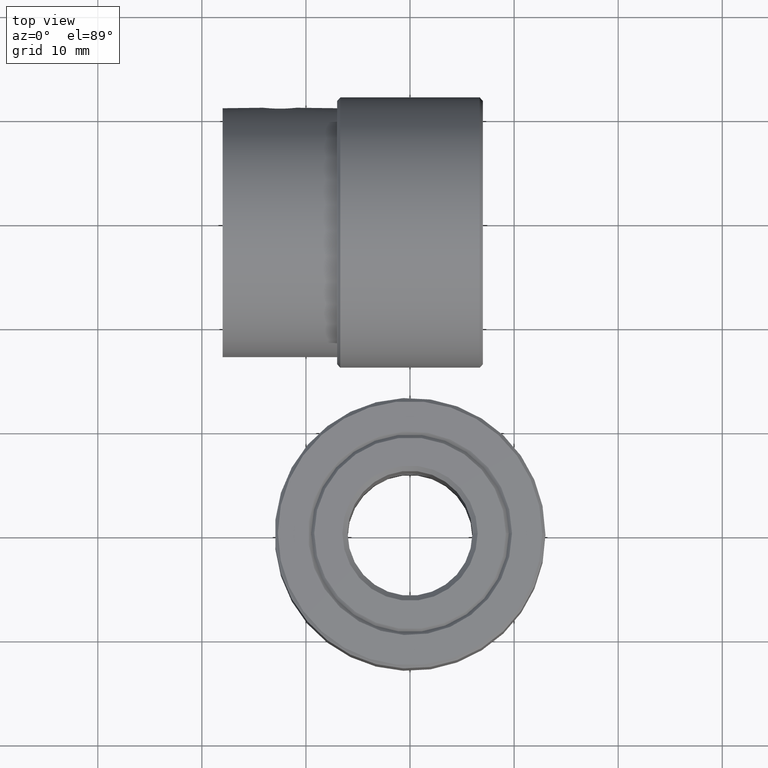
[diagram: clean part render]
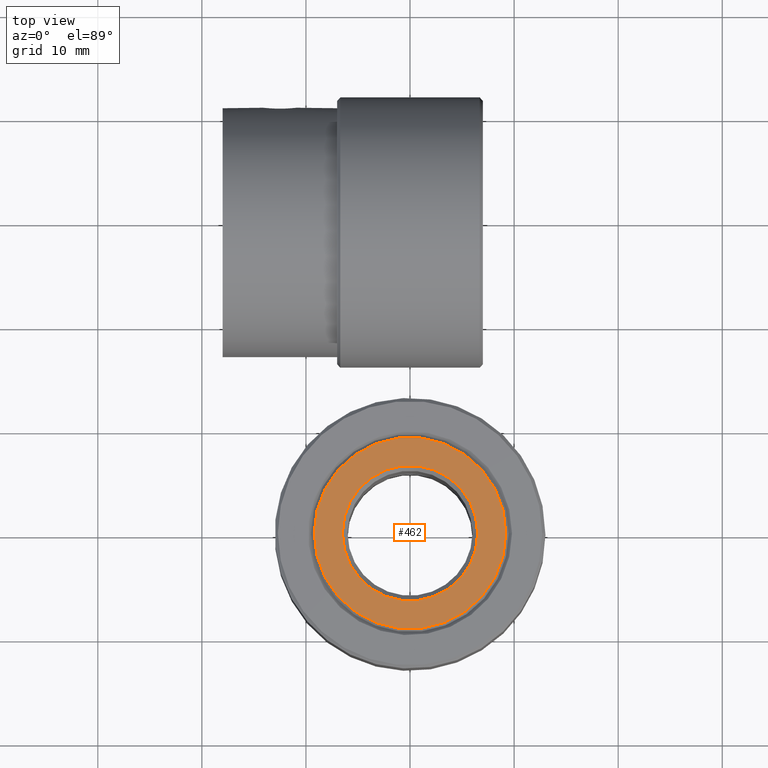
[diagram: same view with one face highlighted and labeled with its STEP entity id]
A machine part, top view. The second image highlights one B-rep face of the part: STEP entity #462.
In plain terms, the highlighted planar face has unit normal (0, 0, 1).
Its self-contained STEP definition (entity closure, byte-faithful):
#462 = ADVANCED_FACE( '', ( #569, #570 ), #571, .T. );
#569 = FACE_OUTER_BOUND( '', #795, .T. );
#570 = FACE_BOUND( '', #796, .T. );
#571 = PLANE( '', #797 );
#795 = EDGE_LOOP( '', ( #1035 ) );
#796 = EDGE_LOOP( '', ( #1036 ) );
#797 = AXIS2_PLACEMENT_3D( '', #1037, #1038, #1039 );
#1035 = ORIENTED_EDGE( '', *, *, #1503, .T. );
#1036 = ORIENTED_EDGE( '', *, *, #1510, .T. );
#1037 = CARTESIAN_POINT( '', ( 0.000000000000000, 0.000000000000000, 0.000000000000000 ) );
#1038 = DIRECTION( '', ( 0.000000000000000, 0.000000000000000, 1.00000000000000 ) );
#1039 = DIRECTION( '', ( 1.00000000000000, 0.000000000000000, 0.000000000000000 ) );
#1503 = EDGE_CURVE( '', #1638, #1638, #1639, .T. );
#1510 = EDGE_CURVE( '', #1652, #1652, #1653, .F. );
#1638 = VERTEX_POINT( '', #1972 );
#1639 = CIRCLE( '', #1973, 9.20000000000000 );
#1652 = VERTEX_POINT( '', #2092 );
#1653 = CIRCLE( '', #2093, 6.50000000000000 );
#1972 = CARTESIAN_POINT( '', ( 9.20000000000000, 0.000000000000000, 0.000000000000000 ) );
#1973 = AXIS2_PLACEMENT_3D( '', #2685, #2686, #2687 );
#2092 = CARTESIAN_POINT( '', ( 6.50000000000000, 0.000000000000000, 0.000000000000000 ) );
#2093 = AXIS2_PLACEMENT_3D( '', #2700, #2701, #2702 );
#2685 = CARTESIAN_POINT( '', ( 0.000000000000000, 0.000000000000000, 0.000000000000000 ) );
#2686 = DIRECTION( '', ( 0.000000000000000, 0.000000000000000, 1.00000000000000 ) );
#2687 = DIRECTION( '', ( 1.00000000000000, 0.000000000000000, -0.000000000000000 ) );
#2700 = CARTESIAN_POINT( '', ( 0.000000000000000, 0.000000000000000, 0.000000000000000 ) );
#2701 = DIRECTION( '', ( 0.000000000000000, 0.000000000000000, 1.00000000000000 ) );
#2702 = DIRECTION( '', ( 1.00000000000000, 0.000000000000000, -0.000000000000000 ) );